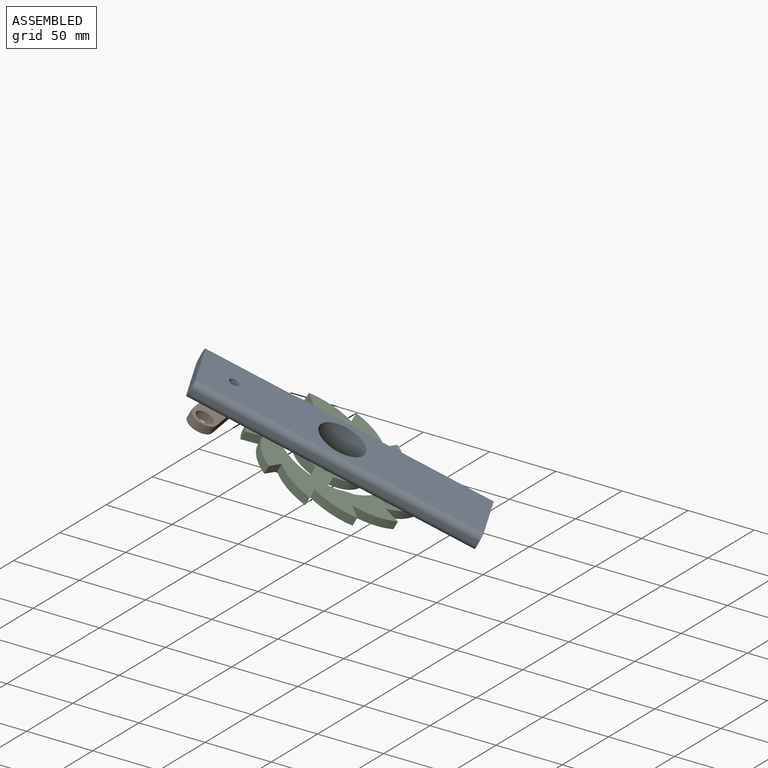
[diagram: assembled view]
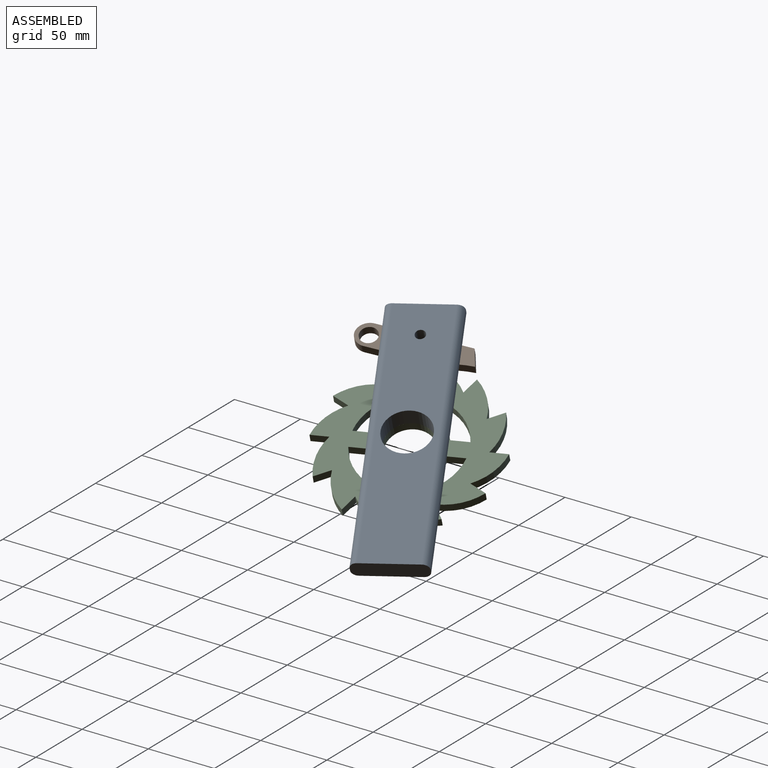
[diagram: assembled view, second angle]
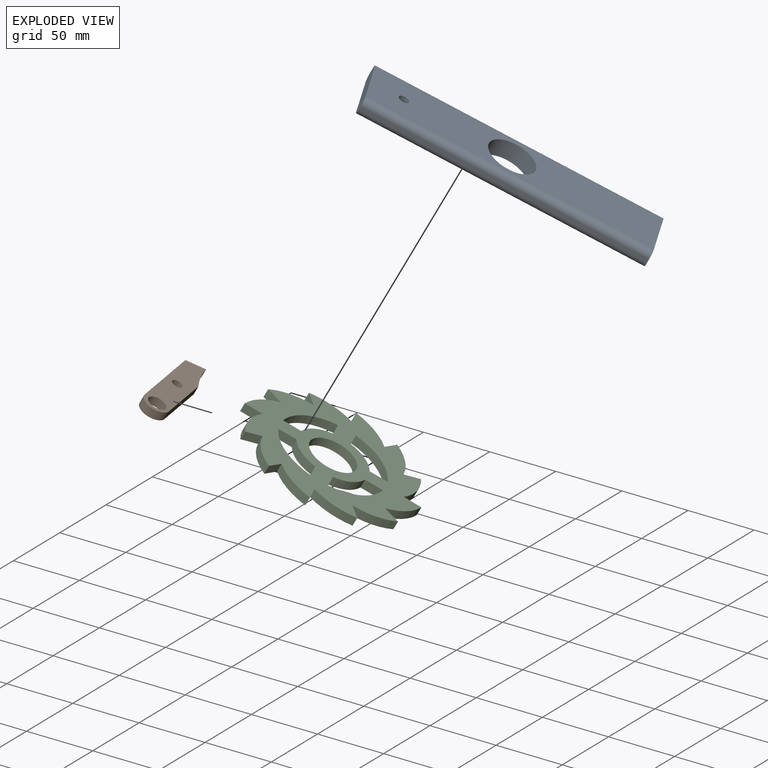
[diagram: exploded view]
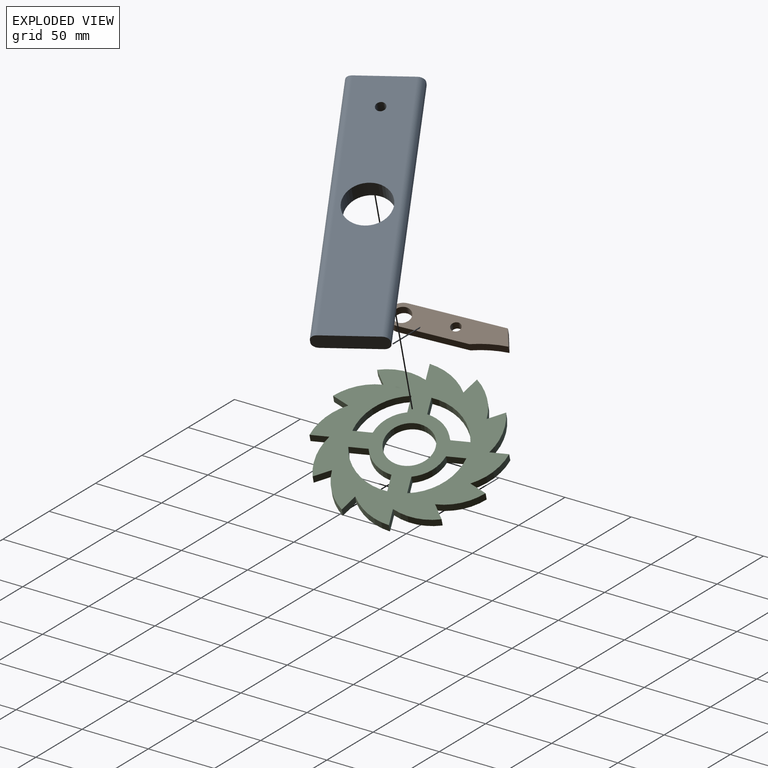
[diagram: exploded view, second angle]
ASSEMBLY  parts=3 mates=2
PART A: 12 faces, bbox 50.8x12.7x203.2 mm
  f0: plane 50.8x12.7mm, normal (0,0,1), area 623mm2, adj f1,f4,f6,f7,f8,f9,f10,f11
  f1: plane 203.2x2.54mm, normal (-1,0,0), area 516.1mm2, adj f0,f2,f9,f11
  f2: plane 50.8x12.7mm, normal (0,0,-1), area 623mm2, adj f1,f4,f6,f7,f8,f9,f10,f11
  f3: cylinder r=16.76mm len=33.53mm, axis (0,1,0), area 1337.7mm2, adj f6,f7
  f4: plane 203.2x2.54mm, normal (1,0,0), area 516.1mm2, adj f0,f2,f8,f10
  f5: cylinder r=3.62mm len=12.7mm, axis (0,1,0), area 288.8mm2, adj f6,f7
  f6: plane 203.2x40.64mm, normal (0,-1,0), area 7334mm2, adj f0,f2,f3,f5,f10,f11
  f7: plane 203.2x40.64mm, normal (0,1,0), area 7334mm2, adj f0,f2,f3,f5,f8,f9
  f8: cylinder r=5.08mm len=203.2mm, axis (0,0,1), area 1621.5mm2, adj f0,f2,f4,f7
  f9: cylinder r=5.08mm len=203.2mm, axis (0,0,-1), area 1621.5mm2, adj f0,f1,f2,f7
  f10: cylinder r=5.08mm len=203.2mm, axis (0,0,-1), area 1621.5mm2, adj f0,f2,f4,f6
  f11: cylinder r=5.08mm len=203.2mm, axis (0,0,1), area 1621.5mm2, adj f0,f1,f2,f6
PART B: 10 faces, bbox 74.7x6.4x41.6 mm
  f0: plane 14.37x6.35mm, normal (-1,0,0), area 91.3mm2, adj f1,f6,f8,f9
  f1: cylinder r=76.56mm len=24.24mm, axis (0,1,0), area 157.4mm2, adj f0,f2,f8,f9
  f2: plane 44.73x19.18mm, normal (0.39,0,-0.92), area 309mm2, adj f1,f3,f8,f9
  f3: cylinder r=9.53mm len=12.25mm, axis (0,1,0), area 93.2mm2, adj f2,f4,f8,f9
  f4: cylinder r=9.53mm len=12.39mm, axis (0,1,0), area 93.2mm2, adj f3,f6,f8,f9
  f5: cylinder r=6.35mm len=12.7mm, axis (0,1,0), area 253.4mm2, adj f8,f9
  f6: plane 61.68x26.44mm, normal (-0.39,0,0.92), area 426.1mm2, adj f0,f4,f8,f9
  f7: cylinder r=3.62mm len=7.24mm, axis (0,1,0), area 144.4mm2, adj f8,f9
  f8: plane 74.74x41.59mm, normal (0,-1,0), area 1197.2mm2, adj f0,f1,f2,f3,f4,f5,f6,f7
  f9: plane 74.74x41.59mm, normal (0,1,0), area 1197.2mm2, adj f0,f1,f2,f3,f4,f5,f6,f7
PART C: 43 faces, bbox 127x6.4x127 mm
  f0: plane 127x127mm, normal (0,-1,0), area 7760.1mm2, adj f2,f3,f4,f5,f6,f7,f8,f9
  f1: plane 127x127mm, normal (0,1,0), area 7760.1mm2, adj f2,f3,f4,f5,f6,f7,f8,f9
  f2: cylinder r=40.64mm len=29.59mm, axis (0,1,0), area 209mm2, adj f0,f1,f3,f25
  f3: plane 11x6.35mm, normal (-0.87,0,0.5), area 80.6mm2, adj f0,f1,f2,f4
  f4: cylinder r=40.64mm len=31.75mm, axis (0,1,0), area 209mm2, adj f0,f1,f3,f5
  f5: plane 12.7x6.35mm, normal (-1,0,0), area 80.6mm2, adj f0,f1,f4,f6
  f6: cylinder r=40.64mm len=25.4mm, axis (0,1,0), area 209mm2, adj f0,f1,f5,f7
  f7: plane 11x6.35mm, normal (-0.87,0,-0.5), area 80.6mm2, adj f0,f1,f6,f8
  f8: cylinder r=40.64mm len=29.59mm, axis (0,1,0), area 209mm2, adj f0,f1,f7,f9
  f9: plane 11x6.35mm, normal (-0.5,0,-0.87), area 80.6mm2, adj f0,f1,f8,f10
  f10: cylinder r=40.64mm len=31.75mm, axis (0,1,0), area 209mm2, adj f0,f1,f9,f11
  f11: plane 12.7x6.35mm, normal (0,0,-1), area 80.6mm2, adj f0,f1,f10,f12
  f12: cylinder r=40.64mm len=25.4mm, axis (0,1,0), area 209mm2, adj f0,f1,f11,f13
  f13: plane 11x6.35mm, normal (0.5,0,-0.87), area 80.6mm2, adj f0,f1,f12,f14
  f14: cylinder r=40.64mm len=29.59mm, axis (0,1,0), area 209mm2, adj f0,f1,f13,f15
  f15: plane 11x6.35mm, normal (0.87,0,-0.5), area 80.6mm2, adj f0,f1,f14,f16
  f16: cylinder r=40.64mm len=31.75mm, axis (0,1,0), area 209mm2, adj f0,f1,f15,f17
  f17: plane 12.7x6.35mm, normal (1,0,0), area 80.6mm2, adj f0,f1,f16,f18
  f18: cylinder r=40.64mm len=25.4mm, axis (0,1,0), area 209mm2, adj f0,f1,f17,f19
  f19: plane 11x6.35mm, normal (0.87,0,0.5), area 80.6mm2, adj f0,f1,f18,f20
  f20: cylinder r=40.64mm len=29.59mm, axis (0,1,0), area 209mm2, adj f0,f1,f19,f21
  f21: plane 11x6.35mm, normal (0.5,0,0.87), area 80.6mm2, adj f0,f1,f20,f22
  f22: cylinder r=40.64mm len=31.75mm, axis (0,1,0), area 209mm2, adj f0,f1,f21,f23
  f23: plane 12.7x6.35mm, normal (0,0,1), area 80.6mm2, adj f0,f1,f22,f24
  f24: cylinder r=40.64mm len=25.4mm, axis (0,1,0), area 209mm2, adj f0,f1,f23,f25
  f25: plane 11x6.35mm, normal (-0.5,0,0.87), area 80.6mm2, adj f0,f1,f2,f24
  f26: cylinder r=16.76mm len=33.53mm, axis (0,1,0), area 668.9mm2, adj f0,f1
  f27: plane 12.97x6.35mm, normal (-1,0,0), area 82.4mm2, adj f0,f1,f28,f30
  f28: cylinder r=38.1mm len=31.22mm, axis (0,1,0), area 299mm2, adj f0,f1,f27,f29
  f29: plane 12.97x6.35mm, normal (0,0,1), area 82.4mm2, adj f0,f1,f28,f30
  f30: cylinder r=25.4mm len=18.24mm, axis (0,1,0), area 171.8mm2, adj f0,f1,f27,f29
  f31: plane 12.97x6.35mm, normal (-1,0,0), area 82.4mm2, adj f0,f1,f32,f34
  f32: cylinder r=25.4mm len=18.24mm, axis (0,1,0), area 171.8mm2, adj f0,f1,f31,f33
  f33: plane 12.97x6.35mm, normal (0,0,-1), area 82.4mm2, adj f0,f1,f32,f34
  f34: cylinder r=38.1mm len=31.22mm, axis (0,1,0), area 299mm2, adj f0,f1,f31,f33
  f35: plane 12.97x6.35mm, normal (0,0,-1), area 82.4mm2, adj f0,f1,f36,f38
  f36: cylinder r=25.4mm len=18.24mm, axis (0,1,0), area 171.8mm2, adj f0,f1,f35,f37
  f37: plane 12.97x6.35mm, normal (1,0,0), area 82.4mm2, adj f0,f1,f36,f38
  f38: cylinder r=38.1mm len=31.22mm, axis (0,1,0), area 299mm2, adj f0,f1,f35,f37
  f39: plane 12.97x6.35mm, normal (1,0,0), area 82.4mm2, adj f0,f1,f40,f42
  f40: cylinder r=25.4mm len=18.24mm, axis (0,1,0), area 171.8mm2, adj f0,f1,f39,f41
  f41: plane 12.97x6.35mm, normal (0,0,1), area 82.4mm2, adj f0,f1,f40,f42
  f42: cylinder r=38.1mm len=31.22mm, axis (0,1,0), area 299mm2, adj f0,f1,f39,f41
PLACE A rot(axis=(0.65,-0.37,-0.66),87.5deg) t=(70,69.72,32.36)mm
PLACE B rot(axis=(0.71,-0.31,-0.63),84.9deg) t=(17.21,117.72,34.42)mm
PLACE C rot(axis=(0.91,0.42,-0.05),90.2deg) t=(64.5,67.52,21.13)mm
MATE revolute B.f7 <-> A.f5  axis (-0.43,-0.17,-0.88) through (4.93,35.8,56.51)mm
MATE revolute C.f26 <-> A.f3  axis (0.43,0.17,0.88) through (64.5,67.52,21.13)mm
